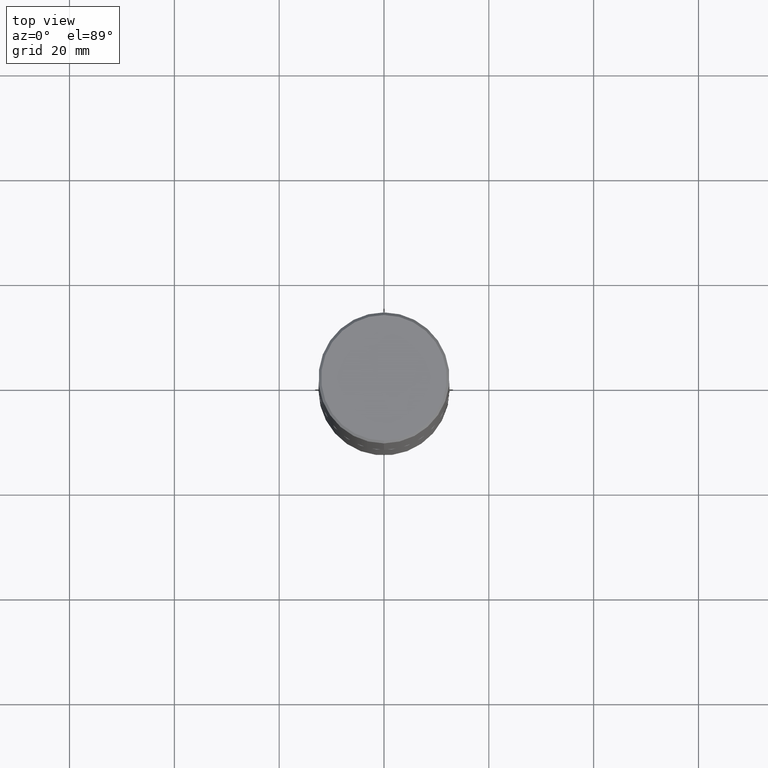
[diagram: clean part render]
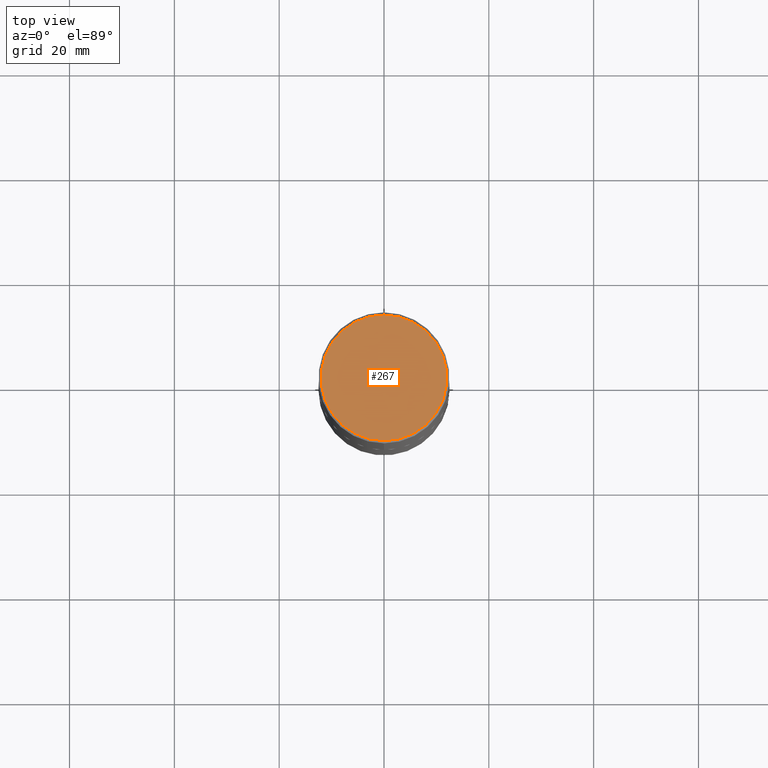
[diagram: same view with one face highlighted and labeled with its STEP entity id]
A machine part, top view. The second image highlights one B-rep face of the part: STEP entity #267.
In plain terms, the highlighted planar face has unit normal (0, -0, -1).
Its self-contained STEP definition (entity closure, byte-faithful):
#1 = EDGE_LOOP ( 'NONE', ( #282, #176 ) ) ;
#4 = DIRECTION ( 'NONE',  ( -6.982962677686264344E-15, -1.000000000000000000, 3.491824508290437824E-15 ) ) ;
#22 = DIRECTION ( 'NONE',  ( 6.982962677686265922E-15, 1.000000000000000000, -3.491824508290438613E-15 ) ) ;
#29 = EDGE_CURVE ( 'NONE', #88, #411, #213, .T. ) ;
#35 = DIRECTION ( 'NONE',  ( -2.445229172240879899E-29, 3.491824508290438219E-15, 1.000000000000000000 ) ) ;
#42 = DIRECTION ( 'NONE',  ( -6.982962677686264344E-15, -1.000000000000000000, 3.491824508290437824E-15 ) ) ;
#88 = VERTEX_POINT ( 'NONE', #300 ) ;
#158 = CARTESIAN_POINT ( 'NONE',  ( 3.297005828269570364E-15, 0.4721500000000000696, -1.731819921419018991E-15 ) ) ;
#176 = ORIENTED_EDGE ( 'NONE', *, *, #355, .T. ) ;
#189 = FACE_OUTER_BOUND ( 'NONE', #1, .T. ) ;
#195 = CARTESIAN_POINT ( 'NONE',  ( 4.066659649933121937E-45, -5.807251931114062973E-31, -1.663099596593768543E-16 ) ) ;
#213 = CIRCLE ( 'NONE', #299, 0.4721500000000000696 ) ;
#262 = CIRCLE ( 'NONE', #273, 0.4721500000000000696 ) ;
#267 = ADVANCED_FACE ( 'NONE', ( #189 ), #350, .F. ) ;
#273 = AXIS2_PLACEMENT_3D ( 'NONE', #195, #389, #4 ) ;
#282 = ORIENTED_EDGE ( 'NONE', *, *, #29, .T. ) ;
#299 = AXIS2_PLACEMENT_3D ( 'NONE', #401, #35, #42 ) ;
#300 = CARTESIAN_POINT ( 'NONE',  ( 3.366835455046433267E-15, 0.4721500000000000696, -1.814974901248707542E-15 ) ) ;
#307 = CARTESIAN_POINT ( 'NONE',  ( -3.307789109625543325E-15, -0.4721500000000000696, 1.482354981929953537E-15 ) ) ;
#350 = PLANE ( 'NONE',  #403 ) ;
#355 = EDGE_CURVE ( 'NONE', #411, #88, #262, .T. ) ;
#389 = DIRECTION ( 'NONE',  ( -2.445229172240879899E-29, 3.491824508290438219E-15, 1.000000000000000000 ) ) ;
#401 = CARTESIAN_POINT ( 'NONE',  ( 4.066659649933121937E-45, -5.807251931114062973E-31, -1.663099596593768543E-16 ) ) ;
#403 = AXIS2_PLACEMENT_3D ( 'NONE', #158, #412, #22 ) ;
#411 = VERTEX_POINT ( 'NONE', #307 ) ;
#412 = DIRECTION ( 'NONE',  ( 2.445229172240879339E-29, -3.491824508290438613E-15, -1.000000000000000000 ) ) ;